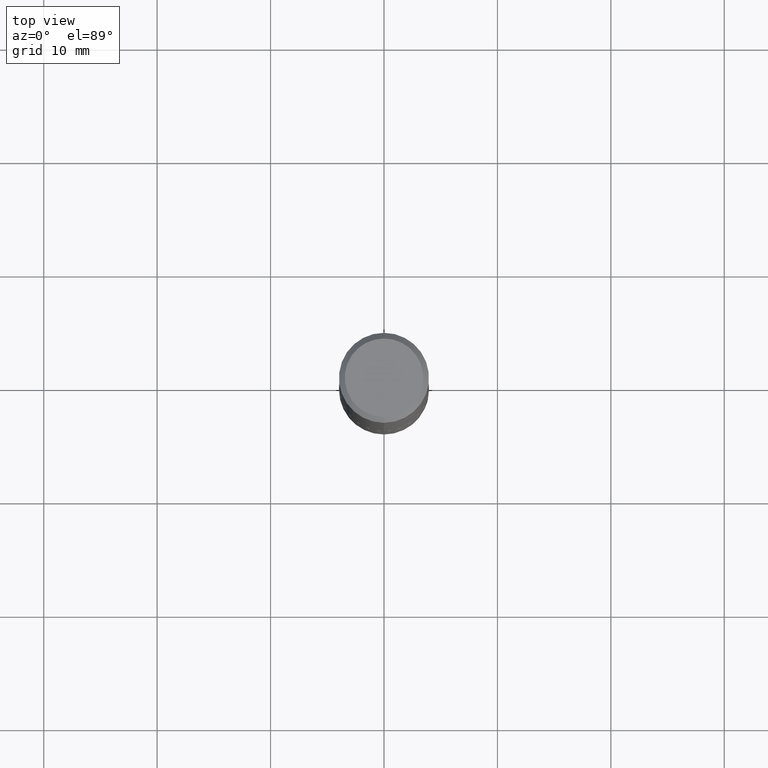
[diagram: clean part render]
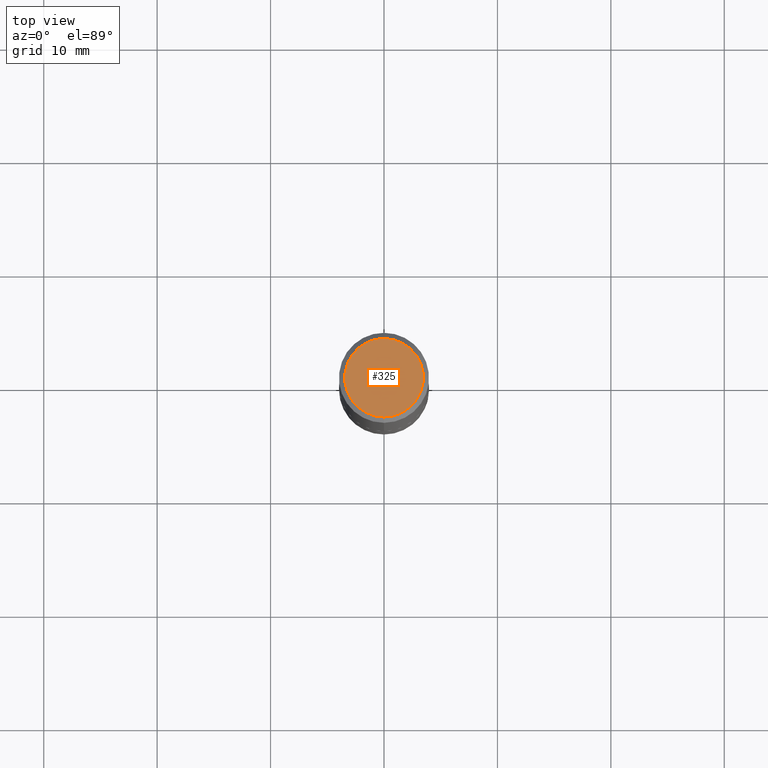
[diagram: same view with one face highlighted and labeled with its STEP entity id]
A machine part, top view. The second image highlights one B-rep face of the part: STEP entity #325.
In plain terms, the highlighted planar face has unit normal (0, -0, -1).
Its self-contained STEP definition (entity closure, byte-faithful):
#6 = AXIS2_PLACEMENT_3D ( 'NONE', #399, #284, #393 ) ;
#35 = CARTESIAN_POINT ( 'NONE',  ( 8.382172461401028256E-46, -1.196151135086778161E-31, -3.426774895737865631E-17 ) ) ;
#54 = EDGE_CURVE ( 'NONE', #376, #123, #253, .T. ) ;
#66 = DIRECTION ( 'NONE',  ( -6.982962677686266711E-15, -1.000000000000000000, 3.490603180776537498E-15 ) ) ;
#78 = CARTESIAN_POINT ( 'NONE',  ( 9.514286648347541549E-16, 0.1362500000000000377, -4.927285578594926758E-16 ) ) ;
#93 = CIRCLE ( 'NONE', #6, 0.1362500000000000377 ) ;
#118 = CARTESIAN_POINT ( 'NONE',  ( -1.003347832174086278E-15, -0.1362500000000000377, 4.413269344234247437E-16 ) ) ;
#120 = PLANE ( 'NONE',  #386 ) ;
#123 = VERTEX_POINT ( 'NONE', #352 ) ;
#131 = EDGE_LOOP ( 'NONE', ( #273, #338 ) ) ;
#147 = DIRECTION ( 'NONE',  ( 6.982962677686265922E-15, 1.000000000000000000, -3.490603180776537498E-15 ) ) ;
#161 = DIRECTION ( 'NONE',  ( -2.446082020685560042E-29, 3.490603180776537498E-15, 1.000000000000000000 ) ) ;
#232 = EDGE_CURVE ( 'NONE', #123, #376, #93, .T. ) ;
#253 = CIRCLE ( 'NONE', #317, 0.1362500000000000377 ) ;
#273 = ORIENTED_EDGE ( 'NONE', *, *, #232, .T. ) ;
#284 = DIRECTION ( 'NONE',  ( -2.446082020685560042E-29, 3.490603180776537498E-15, 1.000000000000000000 ) ) ;
#313 = FACE_OUTER_BOUND ( 'NONE', #131, .T. ) ;
#317 = AXIS2_PLACEMENT_3D ( 'NONE', #35, #161, #66 ) ;
#325 = ADVANCED_FACE ( 'NONE', ( #313 ), #120, .F. ) ;
#338 = ORIENTED_EDGE ( 'NONE', *, *, #54, .T. ) ;
#352 = CARTESIAN_POINT ( 'NONE',  ( 1.021258291611616861E-15, 0.1362500000000000377, -5.098624323381820686E-16 ) ) ;
#364 = DIRECTION ( 'NONE',  ( 2.446082020685559481E-29, -3.490603180776537498E-15, -1.000000000000000000 ) ) ;
#376 = VERTEX_POINT ( 'NONE', #118 ) ;
#386 = AXIS2_PLACEMENT_3D ( 'NONE', #78, #364, #147 ) ;
#393 = DIRECTION ( 'NONE',  ( -6.982962677686266711E-15, -1.000000000000000000, 3.490603180776537498E-15 ) ) ;
#399 = CARTESIAN_POINT ( 'NONE',  ( 8.382172461401028256E-46, -1.196151135086778161E-31, -3.426774895737865631E-17 ) ) ;